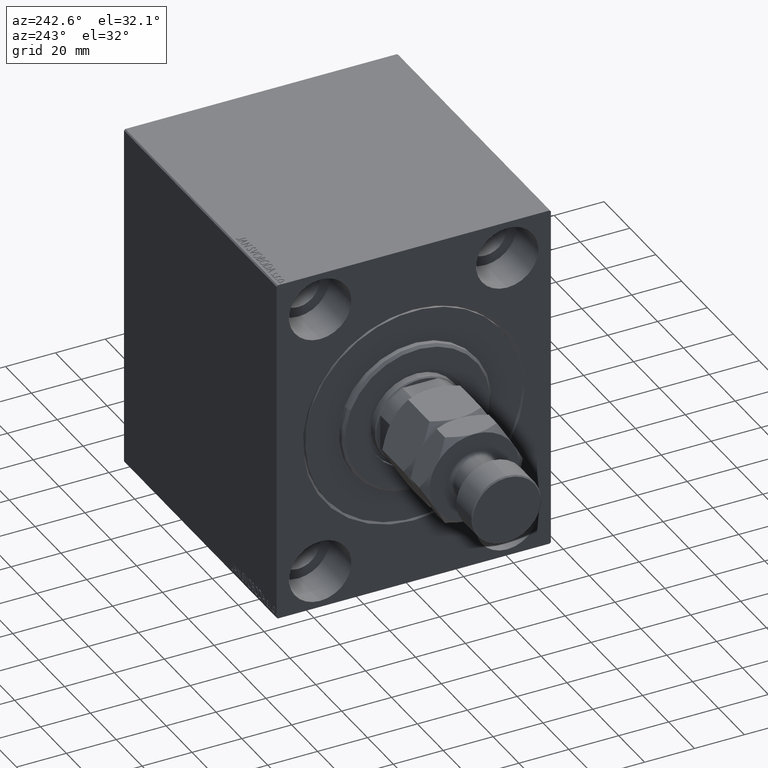
[diagram: clean part render]
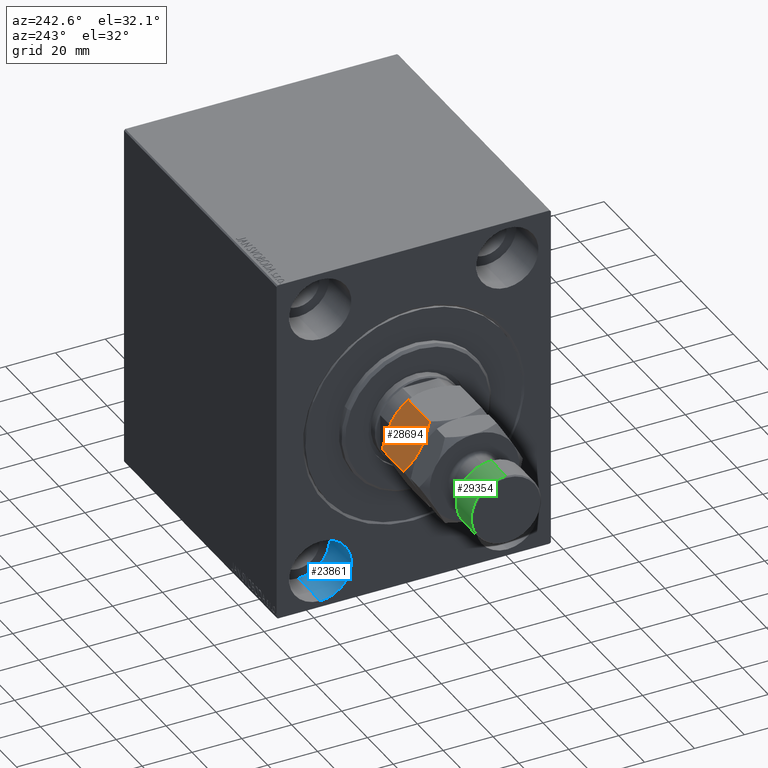
[diagram: same view with three faces highlighted in distinct colors, each labeled with its STEP entity id]
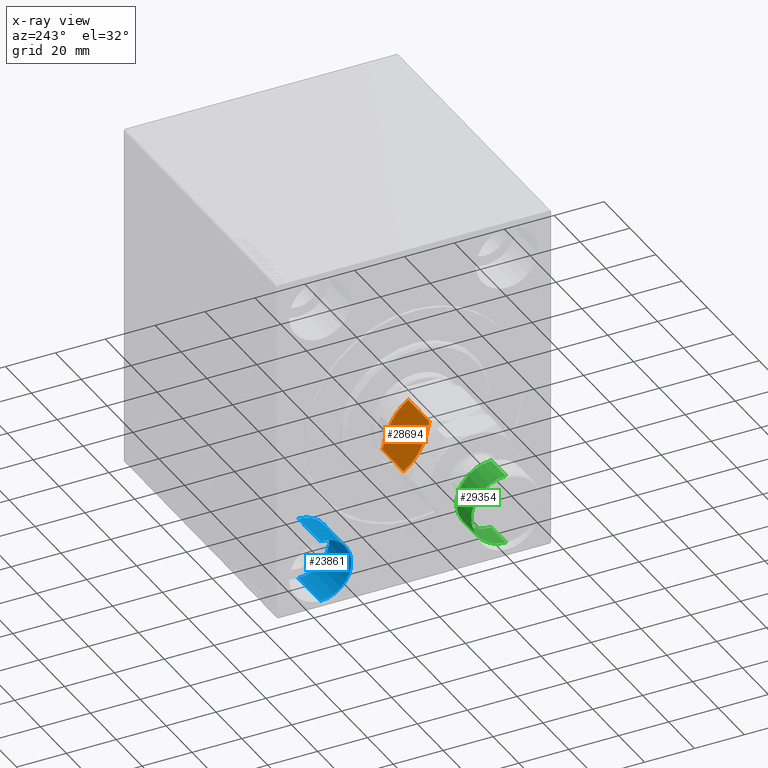
[diagram: x-ray of the same camera — body ghosted, the three highlighted faces saturated]
A machine part, auxiliary view with three faces highlighted in distinct colors.
The next image is the same camera in x-ray (body ghosted, the three faces saturated) — at least one of them is partly hidden behind the body in this view.
Their STEP definitions:

[orange] entity #28694 — the highlighted planar face has unit normal (-0, -0.866, -0.5).
#130 = CARTESIAN_POINT ( 'NONE',  ( 18.00000000000000000, 10.39230484541326227, 19.21539030917347901 ) ) ;
#756 = ORIENTED_EDGE ( 'NONE', *, *, #20213, .F. ) ;
#861 = VERTEX_POINT ( 'NONE', #19844 ) ;
#2081 = CARTESIAN_POINT ( 'NONE',  ( 15.13928418966203004, 12.04393988858690179, 1.272574701504239680 ) ) ;
#2702 = CARTESIAN_POINT ( 'NONE',  ( 18.00000000000000000, 10.39230484541326227, 19.21539030917347901 ) ) ;
#4034 = CARTESIAN_POINT ( 'NONE',  ( 18.00000000000000000, 10.39230484541326227, 2.784609690826518325 ) ) ;
#4102 = LINE ( 'NONE', #42572, #13647 ) ;
#6385 = CARTESIAN_POINT ( 'NONE',  ( 8.999999999999998224, 15.58845726811989429, 0.000000000000000000 ) ) ;
#7569 = VERTEX_POINT ( 'NONE', #36389 ) ;
#7634 = EDGE_CURVE ( 'NONE', #16586, #861, #22839, .T. ) ;
#10261 = CARTESIAN_POINT ( 'NONE',  ( 12.14199022028319774, 13.77442836864821629, 21.65943689774472602 ) ) ;
#11553 = VERTEX_POINT ( 'NONE', #130 ) ;
#11962 = CARTESIAN_POINT ( 'NONE',  ( 9.000000000000000000, 15.58845726811989074, 22.00000000000000000 ) ) ;
#12879 = EDGE_CURVE ( 'NONE', #7569, #24408, #30216, .T. ) ;
#13053 = CARTESIAN_POINT ( 'NONE',  ( 8.209538469370125213, 16.04483044561309768, 0.01733285647408576435 ) ) ;
#13500 = CARTESIAN_POINT ( 'NONE',  ( 9.790461530629873010, 15.13208409062669624, 21.98266714352591578 ) ) ;
#13511 = CARTESIAN_POINT ( 'NONE',  ( 1.411330396252046260, 19.96977770663490759, 1.969777706634896708 ) ) ;
#13647 = VECTOR ( 'NONE', #25730, 1000.000000000000000 ) ;
#14959 = CARTESIAN_POINT ( 'NONE',  ( 7.434539168300457135, 16.49227650070744033, 22.00000000000000711 ) ) ;
#15187 = CARTESIAN_POINT ( 'NONE',  ( -2.339913671058857151E-16, 20.78460969082652454, 19.21539030917348256 ) ) ;
#15696 = LINE ( 'NONE', #33444, #18690 ) ;
#16330 = CARTESIAN_POINT ( 'NONE',  ( 8.999999999999998224, 15.58845726811989429, 0.000000000000000000 ) ) ;
#16586 = VERTEX_POINT ( 'NONE', #27395 ) ;
#16769 = CARTESIAN_POINT ( 'NONE',  ( 16.59030399953601531, 11.20619321075668218, 1.970721325483050235 ) ) ;
#17916 = DIRECTION ( 'NONE',  ( 0.8660254037844387076, -0.4999999999999999445, 0.000000000000000000 ) ) ;
#18596 = EDGE_CURVE ( 'NONE', #11553, #44300, #15696, .T. ) ;
#18690 = VECTOR ( 'NONE', #20069, 1000.000000000000000 ) ;
#19844 = CARTESIAN_POINT ( 'NONE',  ( -2.339913671058857151E-16, 20.78460969082652454, 19.21539030917348256 ) ) ;
#20069 = DIRECTION ( 'NONE',  ( -0.000000000000000000, -0.000000000000000000, -1.000000000000000000 ) ) ;
#20202 = CARTESIAN_POINT ( 'NONE',  ( -1.065242688631141971E-15, 20.78460969082652454, 2.784609690826513440 ) ) ;
#20213 = EDGE_CURVE ( 'NONE', #11553, #16586, #44851, .T. ) ;
#22290 = ORIENTED_EDGE ( 'NONE', *, *, #26860, .F. ) ;
#22839 = B_SPLINE_CURVE_WITH_KNOTS ( 'NONE', 3,
 ( #11962, #14959, #32938, #26020, #29023, #15187 ),
 .UNSPECIFIED., .F., .F.,
 ( 4, 2, 4 ),
 ( 0.01077282027732746894, 0.01612137750481873466, 0.02146993473231000385 ),
 .UNSPECIFIED. ) ;
#23254 = FACE_OUTER_BOUND ( 'NONE', #39495, .T. ) ;
#23658 = CARTESIAN_POINT ( 'NONE',  ( 5.097327296964719423, 17.84166640377631197, 0.5370855558290075216 ) ) ;
#24107 = CARTESIAN_POINT ( 'NONE',  ( 7.023280245922045140, 16.72971695024924443, 0.1387225990985735125 ) ) ;
#24408 = VERTEX_POINT ( 'NONE', #35506 ) ;
#24613 = CARTESIAN_POINT ( 'NONE',  ( 18.00000000000000000, 10.39230484541326227, 22.00000000000000000 ) ) ;
#25730 = DIRECTION ( 'NONE',  ( -0.000000000000000000, -0.000000000000000000, -1.000000000000000000 ) ) ;
#26020 = CARTESIAN_POINT ( 'NONE',  ( 2.860715810337963738, 19.13297464765287259, 20.72742529849575277 ) ) ;
#26860 = EDGE_CURVE ( 'NONE', #861, #7569, #4102, .T. ) ;
#27186 = B_SPLINE_CURVE_WITH_KNOTS ( 'NONE', 3,
 ( #16330, #30843, #41230, #2081, #16769, #34297 ),
 .UNSPECIFIED., .F., .F.,
 ( 4, 2, 4 ),
 ( 0.01077282027732746894, 0.01612137750481873466, 0.02146993473231000038 ),
 .UNSPECIFIED. ) ;
#27336 = CARTESIAN_POINT ( 'NONE',  ( 7.415748492146453152, 16.50312530264320898, 0.08694689011815050217 ) ) ;
#27395 = CARTESIAN_POINT ( 'NONE',  ( 9.000000000000000000, 15.58845726811989074, 22.00000000000000000 ) ) ;
#27773 = CARTESIAN_POINT ( 'NONE',  ( 9.394125676616230436, 15.36090870263096875, 22.00000000000000000 ) ) ;
#28067 = DIRECTION ( 'NONE',  ( -0.4999999999999999445, -0.8660254037844387076, 0.000000000000000000 ) ) ;
#28145 = ORIENTED_EDGE ( 'NONE', *, *, #7634, .F. ) ;
#28661 = ORIENTED_EDGE ( 'NONE', *, *, #18596, .T. ) ;
#28694 = ADVANCED_FACE ( 'NONE', ( #23254 ), #37310, .F. ) ;
#29023 = CARTESIAN_POINT ( 'NONE',  ( 1.409696000463982912, 19.97072132548310108, 20.02927867451694510 ) ) ;
#30216 = B_SPLINE_CURVE_WITH_KNOTS ( 'NONE', 3,
 ( #20202, #13511, #38165, #23658, #41185, #24107, #27336, #13053, #34481, #6385 ),
 .UNSPECIFIED., .F., .F.,
 ( 4, 2, 2, 2, 4 ),
 ( 2.544307986815284985E-07, 0.005386537354063076002, 0.008079678815695275074, 0.009426249546511372007, 0.01077282027732746894 ),
 .UNSPECIFIED. ) ;
#30843 = CARTESIAN_POINT ( 'NONE',  ( 10.56546083169953754, 14.68463803553234825, -3.293264098924718535E-15 ) ) ;
#31017 = CARTESIAN_POINT ( 'NONE',  ( 9.000000000000000000, 15.58845726811989074, 22.00000000000000000 ) ) ;
#31472 = CARTESIAN_POINT ( 'NONE',  ( 16.58866960374795241, 11.20713682960488100, 20.03022229336509596 ) ) ;
#31702 = CARTESIAN_POINT ( 'NONE',  ( 15.14539811114618573, 12.04041001437222214, 20.72261692211012729 ) ) ;
#32938 = CARTESIAN_POINT ( 'NONE',  ( 5.895697476400520110, 17.38072716576608201, 21.72360409287842131 ) ) ;
#33444 = CARTESIAN_POINT ( 'NONE',  ( 18.00000000000000000, 10.39230484541326227, 22.00000000000000000 ) ) ;
#34297 = CARTESIAN_POINT ( 'NONE',  ( 18.00000000000000000, 10.39230484541326227, 2.784609690826518325 ) ) ;
#34481 = CARTESIAN_POINT ( 'NONE',  ( 8.605874323383767788, 15.81600583360882162, -3.502481236896532691E-15 ) ) ;
#35037 = AXIS2_PLACEMENT_3D ( 'NONE', #24613, #28067, #17916 ) ;
#35506 = CARTESIAN_POINT ( 'NONE',  ( 8.999999999999998224, 15.58845726811989429, 0.000000000000000000 ) ) ;
#36058 = EDGE_CURVE ( 'NONE', #24408, #44300, #27186, .T. ) ;
#36389 = CARTESIAN_POINT ( 'NONE',  ( -1.065242688631141971E-15, 20.78460969082652454, 2.784609690826513440 ) ) ;
#37287 = ORIENTED_EDGE ( 'NONE', *, *, #36058, .F. ) ;
#37310 = PLANE ( 'NONE',  #35037 ) ;
#38156 = CARTESIAN_POINT ( 'NONE',  ( 10.58425150785354418, 14.67378923359658138, 21.91305310988184374 ) ) ;
#38165 = CARTESIAN_POINT ( 'NONE',  ( 2.854601888853809388, 19.13650452186755757, 1.277383077889868046 ) ) ;
#39098 = ORIENTED_EDGE ( 'NONE', *, *, #12879, .F. ) ;
#39495 = EDGE_LOOP ( 'NONE', ( #39098, #22290, #28145, #756, #28661, #37287 ) ) ;
#41185 = CARTESIAN_POINT ( 'NONE',  ( 5.858009779716799592, 17.40248616759157230, 0.3405631022552657039 ) ) ;
#41230 = CARTESIAN_POINT ( 'NONE',  ( 12.10430252359947900, 13.79618737047370125, 0.2763959071215808527 ) ) ;
#42572 = CARTESIAN_POINT ( 'NONE',  ( 0.000000000000000000, 20.78460969082652454, 22.00000000000000000 ) ) ;
#44300 = VERTEX_POINT ( 'NONE', #4034 ) ;
#44851 = B_SPLINE_CURVE_WITH_KNOTS ( 'NONE', 3,
 ( #2702, #31472, #31702, #45512, #10261, #45065, #38156, #13500, #27773, #31017 ),
 .UNSPECIFIED., .F., .F.,
 ( 4, 2, 2, 2, 4 ),
 ( 2.544307986796311447E-07, 0.005386537354063075135, 0.008079678815695273339, 0.009426249546511372007, 0.01077282027732746894 ),
 .UNSPECIFIED. ) ;
#45065 = CARTESIAN_POINT ( 'NONE',  ( 10.97671975407794953, 14.44719758599053705, 21.86127740090141458 ) ) ;
#45512 = CARTESIAN_POINT ( 'NONE',  ( 12.90267270303527525, 13.33524813246346952, 21.46291444417098759 ) ) ;

[blue] entity #23861 — the highlighted cylindrical surface (edge-blend (fillet) strip) has radius 12.5 mm, axis along (-1, -0, -0).
#76 = DIRECTION ( 'NONE',  ( 0.000000000000000000, 0.000000000000000000, 1.000000000000000000 ) ) ;
#1071 = FACE_OUTER_BOUND ( 'NONE', #20781, .T. ) ;
#3761 = DIRECTION ( 'NONE',  ( -1.000000000000000000, 0.000000000000000000, 0.000000000000000000 ) ) ;
#4511 = CARTESIAN_POINT ( 'NONE',  ( 0.000000000000000000, 37.49999999999997868, -67.49999999999998579 ) ) ;
#4994 = ORIENTED_EDGE ( 'NONE', *, *, #33521, .F. ) ;
#5435 = DIRECTION ( 'NONE',  ( 0.000000000000000000, 0.000000000000000000, 1.000000000000000000 ) ) ;
#6497 = EDGE_CURVE ( 'NONE', #17316, #42303, #20673, .T. ) ;
#8415 = CARTESIAN_POINT ( 'NONE',  ( 17.00000000000000000, 37.49999999999997868, -54.99999999999999289 ) ) ;
#9907 = ORIENTED_EDGE ( 'NONE', *, *, #6497, .F. ) ;
#10325 = DIRECTION ( 'NONE',  ( -1.000000000000000000, -0.000000000000000000, -0.000000000000000000 ) ) ;
#14021 = AXIS2_PLACEMENT_3D ( 'NONE', #27923, #3761, #76 ) ;
#15084 = DIRECTION ( 'NONE',  ( -1.000000000000000000, -0.000000000000000000, -0.000000000000000000 ) ) ;
#17219 = EDGE_CURVE ( 'NONE', #19589, #35866, #27467, .T. ) ;
#17316 = VERTEX_POINT ( 'NONE', #19697 ) ;
#18555 = DIRECTION ( 'NONE',  ( -1.000000000000000000, 0.000000000000000000, 0.000000000000000000 ) ) ;
#19385 = AXIS2_PLACEMENT_3D ( 'NONE', #43907, #18555, #5435 ) ;
#19589 = VERTEX_POINT ( 'NONE', #4511 ) ;
#19697 = CARTESIAN_POINT ( 'NONE',  ( 17.00000000000000000, 37.49999999999997868, -67.49999999999998579 ) ) ;
#20673 = CIRCLE ( 'NONE', #14021, 12.49999999999999645 ) ;
#20781 = EDGE_LOOP ( 'NONE', ( #9907, #35985, #32570, #4994 ) ) ;
#21044 = DIRECTION ( 'NONE',  ( -1.000000000000000000, -0.000000000000000000, -0.000000000000000000 ) ) ;
#23861 = ADVANCED_FACE ( 'NONE', ( #1071 ), #26146, .F. ) ;
#26146 = CYLINDRICAL_SURFACE ( 'NONE', #28392, 12.49999999999999645 ) ;
#27467 = CIRCLE ( 'NONE', #19385, 12.49999999999999645 ) ;
#27923 = CARTESIAN_POINT ( 'NONE',  ( 17.00000000000000000, 37.49999999999997868, -54.99999999999999289 ) ) ;
#28392 = AXIS2_PLACEMENT_3D ( 'NONE', #8415, #15084, #29150 ) ;
#28841 = EDGE_CURVE ( 'NONE', #17316, #19589, #44790, .T. ) ;
#29150 = DIRECTION ( 'NONE',  ( 0.000000000000000000, 0.000000000000000000, 1.000000000000000000 ) ) ;
#31080 = LINE ( 'NONE', #41678, #32961 ) ;
#32570 = ORIENTED_EDGE ( 'NONE', *, *, #17219, .T. ) ;
#32961 = VECTOR ( 'NONE', #10325, 1000.000000000000000 ) ;
#33294 = CARTESIAN_POINT ( 'NONE',  ( 17.00000000000000000, 37.49999999999997868, -42.49999999999999289 ) ) ;
#33521 = EDGE_CURVE ( 'NONE', #42303, #35866, #31080, .T. ) ;
#35866 = VERTEX_POINT ( 'NONE', #42648 ) ;
#35985 = ORIENTED_EDGE ( 'NONE', *, *, #28841, .T. ) ;
#40936 = VECTOR ( 'NONE', #21044, 1000.000000000000000 ) ;
#41125 = CARTESIAN_POINT ( 'NONE',  ( 17.00000000000000000, 37.49999999999997868, -67.49999999999998579 ) ) ;
#41678 = CARTESIAN_POINT ( 'NONE',  ( 17.00000000000000000, 37.49999999999997868, -42.49999999999999289 ) ) ;
#42303 = VERTEX_POINT ( 'NONE', #33294 ) ;
#42648 = CARTESIAN_POINT ( 'NONE',  ( 0.000000000000000000, 37.49999999999997868, -42.49999999999999289 ) ) ;
#43907 = CARTESIAN_POINT ( 'NONE',  ( 0.000000000000000000, 37.49999999999997868, -54.99999999999999289 ) ) ;
#44790 = LINE ( 'NONE', #41125, #40936 ) ;

[green] entity #29354 — the highlighted cylindrical surface (partial cylindrical patch) has radius 14 mm, axis along (1, -0, -0).
#66 = ORIENTED_EDGE ( 'NONE', *, *, #15386, .F. ) ;
#134 = DIRECTION ( 'NONE',  ( 1.000000000000000000, 0.000000000000000000, 0.000000000000000000 ) ) ;
#513 = FACE_OUTER_BOUND ( 'NONE', #29001, .T. ) ;
#9679 = CARTESIAN_POINT ( 'NONE',  ( -14.00000000000000000, 0.000000000000000000, 58.50000000000002132 ) ) ;
#9806 = AXIS2_PLACEMENT_3D ( 'NONE', #39720, #33477, #43850 ) ;
#12017 = CIRCLE ( 'NONE', #9806, 14.00000000000000000 ) ;
#13284 = ORIENTED_EDGE ( 'NONE', *, *, #17502, .T. ) ;
#14035 = LINE ( 'NONE', #41709, #15631 ) ;
#15386 = EDGE_CURVE ( 'NONE', #22032, #16990, #14035, .T. ) ;
#15631 = VECTOR ( 'NONE', #24183, 1000.000000000000000 ) ;
#16256 = VERTEX_POINT ( 'NONE', #28702 ) ;
#16990 = VERTEX_POINT ( 'NONE', #42546 ) ;
#17478 = CIRCLE ( 'NONE', #28539, 14.00000000000000000 ) ;
#17502 = EDGE_CURVE ( 'NONE', #22032, #16256, #12017, .T. ) ;
#18406 = CARTESIAN_POINT ( 'NONE',  ( 14.00000000000000000, 1.714505518806294638E-15, 59.00000000000000000 ) ) ;
#18435 = CYLINDRICAL_SURFACE ( 'NONE', #31383, 14.00000000000000000 ) ;
#20336 = ORIENTED_EDGE ( 'NONE', *, *, #37970, .T. ) ;
#21645 = DIRECTION ( 'NONE',  ( -0.000000000000000000, -0.000000000000000000, -1.000000000000000000 ) ) ;
#22032 = VERTEX_POINT ( 'NONE', #9679 ) ;
#24183 = DIRECTION ( 'NONE',  ( -0.000000000000000000, -0.000000000000000000, -1.000000000000000000 ) ) ;
#24935 = VERTEX_POINT ( 'NONE', #42033 ) ;
#25138 = CARTESIAN_POINT ( 'NONE',  ( 0.000000000000000000, 0.000000000000000000, 59.00000000000000000 ) ) ;
#28539 = AXIS2_PLACEMENT_3D ( 'NONE', #39287, #28677, #134 ) ;
#28677 = DIRECTION ( 'NONE',  ( -0.000000000000000000, -0.000000000000000000, 1.000000000000000000 ) ) ;
#28702 = CARTESIAN_POINT ( 'NONE',  ( 14.00000000000000000, 1.714505518806294638E-15, 58.50000000000002132 ) ) ;
#29001 = EDGE_LOOP ( 'NONE', ( #13284, #45327, #20336, #66 ) ) ;
#29354 = ADVANCED_FACE ( 'NONE', ( #513 ), #18435, .T. ) ;
#31383 = AXIS2_PLACEMENT_3D ( 'NONE', #25138, #39204, #39882 ) ;
#31471 = VECTOR ( 'NONE', #21645, 1000.000000000000000 ) ;
#32249 = LINE ( 'NONE', #18406, #31471 ) ;
#33477 = DIRECTION ( 'NONE',  ( 0.000000000000000000, 0.000000000000000000, -1.000000000000000000 ) ) ;
#37900 = EDGE_CURVE ( 'NONE', #16256, #24935, #32249, .T. ) ;
#37970 = EDGE_CURVE ( 'NONE', #24935, #16990, #17478, .T. ) ;
#39204 = DIRECTION ( 'NONE',  ( -0.000000000000000000, -0.000000000000000000, -1.000000000000000000 ) ) ;
#39287 = CARTESIAN_POINT ( 'NONE',  ( 0.000000000000000000, 0.000000000000000000, 46.99999999999998579 ) ) ;
#39720 = CARTESIAN_POINT ( 'NONE',  ( 0.000000000000000000, 0.000000000000000000, 58.50000000000002132 ) ) ;
#39882 = DIRECTION ( 'NONE',  ( -1.000000000000000000, 0.000000000000000000, 0.000000000000000000 ) ) ;
#41709 = CARTESIAN_POINT ( 'NONE',  ( -14.00000000000000000, 0.000000000000000000, 59.00000000000000000 ) ) ;
#42033 = CARTESIAN_POINT ( 'NONE',  ( 14.00000000000000000, 1.714505518806294638E-15, 46.99999999999998579 ) ) ;
#42546 = CARTESIAN_POINT ( 'NONE',  ( -14.00000000000000000, 0.000000000000000000, 46.99999999999998579 ) ) ;
#43850 = DIRECTION ( 'NONE',  ( 1.000000000000000000, 0.000000000000000000, 0.000000000000000000 ) ) ;
#45327 = ORIENTED_EDGE ( 'NONE', *, *, #37900, .T. ) ;